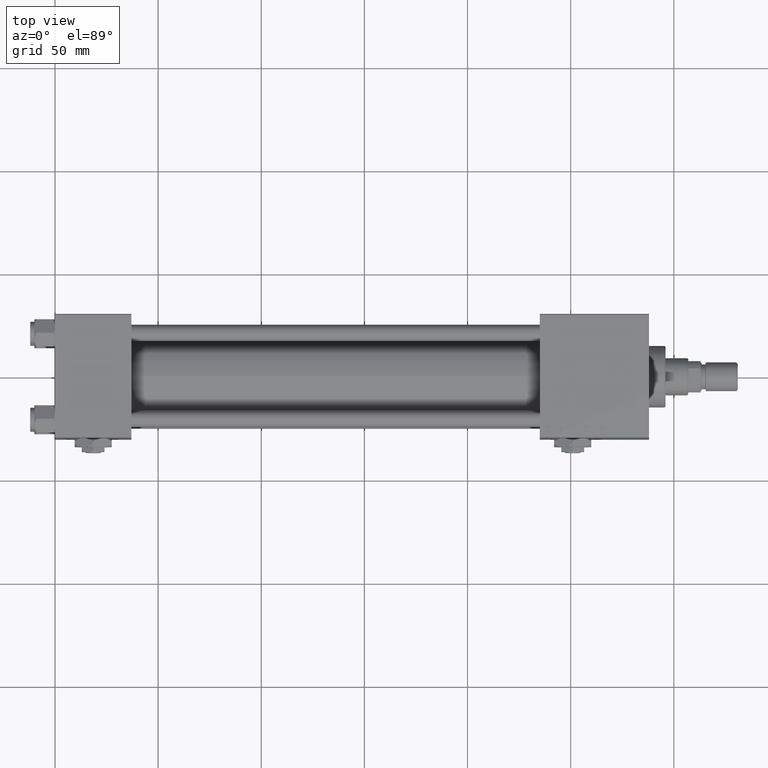
[diagram: clean part render]
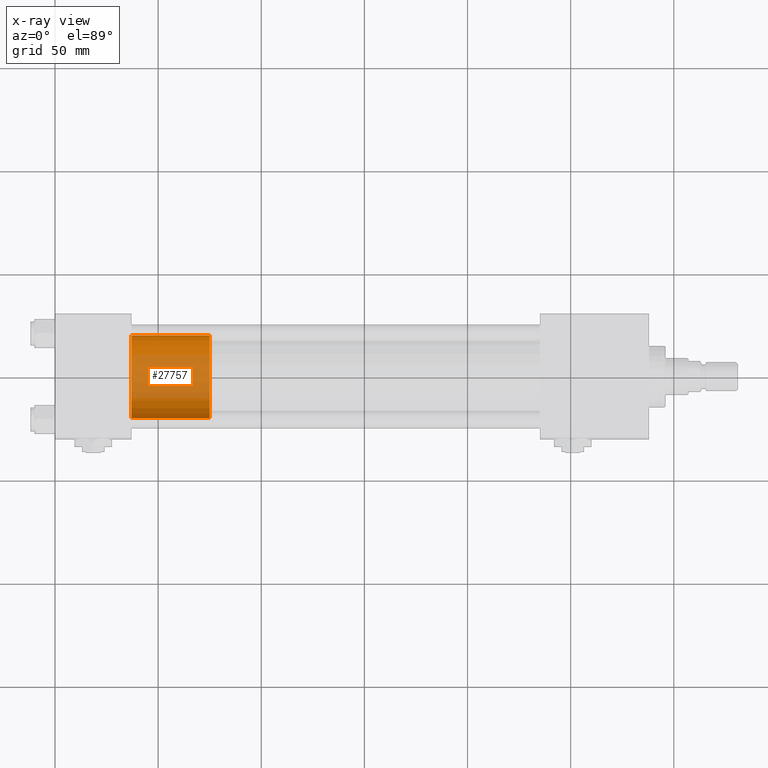
[diagram: x-ray — body ghosted, one internal face saturated and labeled with its STEP entity id]
A machine part, top view, then the same camera in x-ray: the body is ghosted and one INTERNAL B-rep face — a face not visible from any outside direction — is saturated and labeled: STEP entity #27757.
In plain terms, the highlighted cylindrical surface (partial cylindrical patch) has radius 20 mm, axis along (-1, 0, 0).
Its self-contained STEP definition (entity closure, byte-faithful):
#566 = CARTESIAN_POINT ( 'NONE',  ( 0.000000000000000000, 0.000000000000000000, 0.000000000000000000 ) ) ;
#3483 = AXIS2_PLACEMENT_3D ( 'NONE', #49428, #37384, #29360 ) ;
#6725 = CARTESIAN_POINT ( 'NONE',  ( -20.00000000000000000, 0.000000000000000000, 38.00000000000000000 ) ) ;
#6787 = EDGE_CURVE ( 'NONE', #10030, #26117, #17457, .T. ) ;
#7205 = VECTOR ( 'NONE', #42584, 1000.000000000000000 ) ;
#10030 = VERTEX_POINT ( 'NONE', #6725 ) ;
#10947 = CIRCLE ( 'NONE', #29735, 20.00000000000000000 ) ;
#12883 = DIRECTION ( 'NONE',  ( 0.000000000000000000, 0.000000000000000000, 1.000000000000000000 ) ) ;
#13056 = FACE_OUTER_BOUND ( 'NONE', #33719, .T. ) ;
#15965 = CARTESIAN_POINT ( 'NONE',  ( 20.00000000000000000, 2.449293598294706513E-15, 0.000000000000000000 ) ) ;
#17457 = LINE ( 'NONE', #33759, #7205 ) ;
#17489 = CARTESIAN_POINT ( 'NONE',  ( 0.000000000000000000, 0.000000000000000000, 38.00000000000000000 ) ) ;
#19351 = EDGE_CURVE ( 'NONE', #23415, #26117, #10947, .T. ) ;
#19533 = CARTESIAN_POINT ( 'NONE',  ( 20.00000000000000000, 2.449293598294706513E-15, 38.00000000000000000 ) ) ;
#20223 = ORIENTED_EDGE ( 'NONE', *, *, #19351, .T. ) ;
#20821 = CYLINDRICAL_SURFACE ( 'NONE', #3483, 20.00000000000000000 ) ;
#22697 = VERTEX_POINT ( 'NONE', #41081 ) ;
#22742 = DIRECTION ( 'NONE',  ( 0.000000000000000000, 0.000000000000000000, 1.000000000000000000 ) ) ;
#23415 = VERTEX_POINT ( 'NONE', #15965 ) ;
#26117 = VERTEX_POINT ( 'NONE', #51406 ) ;
#27549 = LINE ( 'NONE', #19533, #30999 ) ;
#27757 = ADVANCED_FACE ( 'NONE', ( #13056 ), #20821, .T. ) ;
#29193 = DIRECTION ( 'NONE',  ( 1.000000000000000000, 0.000000000000000000, 0.000000000000000000 ) ) ;
#29360 = DIRECTION ( 'NONE',  ( -1.000000000000000000, 0.000000000000000000, 0.000000000000000000 ) ) ;
#29735 = AXIS2_PLACEMENT_3D ( 'NONE', #566, #12883, #29193 ) ;
#30149 = AXIS2_PLACEMENT_3D ( 'NONE', #17489, #22742, #39039 ) ;
#30999 = VECTOR ( 'NONE', #43872, 1000.000000000000000 ) ;
#33719 = EDGE_LOOP ( 'NONE', ( #44347, #50723, #20223, #38753 ) ) ;
#33759 = CARTESIAN_POINT ( 'NONE',  ( -20.00000000000000000, 0.000000000000000000, 38.00000000000000000 ) ) ;
#37384 = DIRECTION ( 'NONE',  ( -0.000000000000000000, -0.000000000000000000, -1.000000000000000000 ) ) ;
#38753 = ORIENTED_EDGE ( 'NONE', *, *, #6787, .F. ) ;
#39039 = DIRECTION ( 'NONE',  ( 1.000000000000000000, 0.000000000000000000, 0.000000000000000000 ) ) ;
#39526 = CIRCLE ( 'NONE', #30149, 20.00000000000000000 ) ;
#41081 = CARTESIAN_POINT ( 'NONE',  ( 20.00000000000000000, 2.449293598294706513E-15, 38.00000000000000000 ) ) ;
#42568 = EDGE_CURVE ( 'NONE', #22697, #23415, #27549, .T. ) ;
#42584 = DIRECTION ( 'NONE',  ( -0.000000000000000000, -0.000000000000000000, -1.000000000000000000 ) ) ;
#43872 = DIRECTION ( 'NONE',  ( -0.000000000000000000, -0.000000000000000000, -1.000000000000000000 ) ) ;
#44347 = ORIENTED_EDGE ( 'NONE', *, *, #47279, .F. ) ;
#47279 = EDGE_CURVE ( 'NONE', #22697, #10030, #39526, .T. ) ;
#49428 = CARTESIAN_POINT ( 'NONE',  ( 0.000000000000000000, 0.000000000000000000, 38.00000000000000000 ) ) ;
#50723 = ORIENTED_EDGE ( 'NONE', *, *, #42568, .T. ) ;
#51406 = CARTESIAN_POINT ( 'NONE',  ( -20.00000000000000000, 0.000000000000000000, 0.000000000000000000 ) ) ;